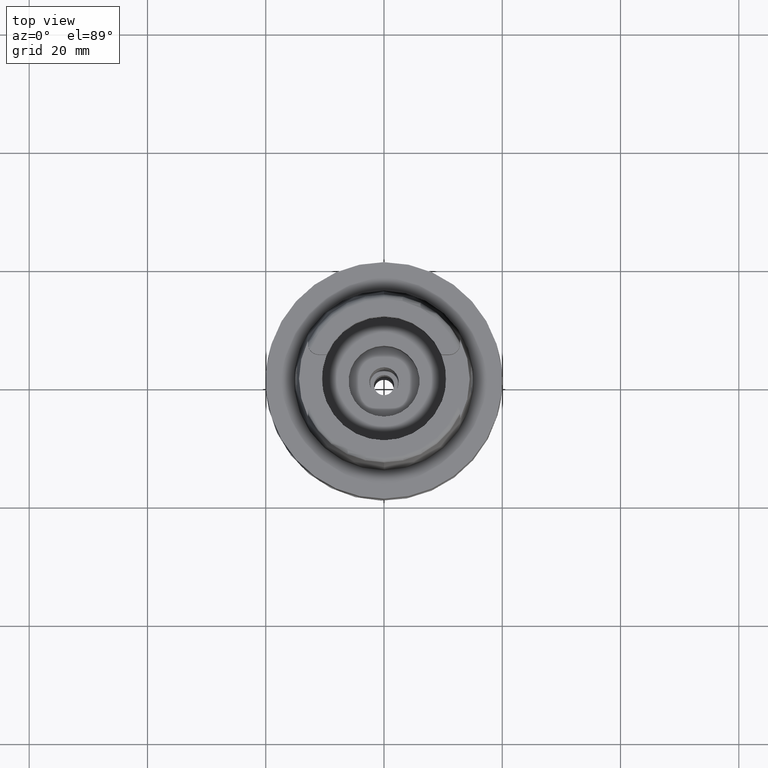
[diagram: clean part render]
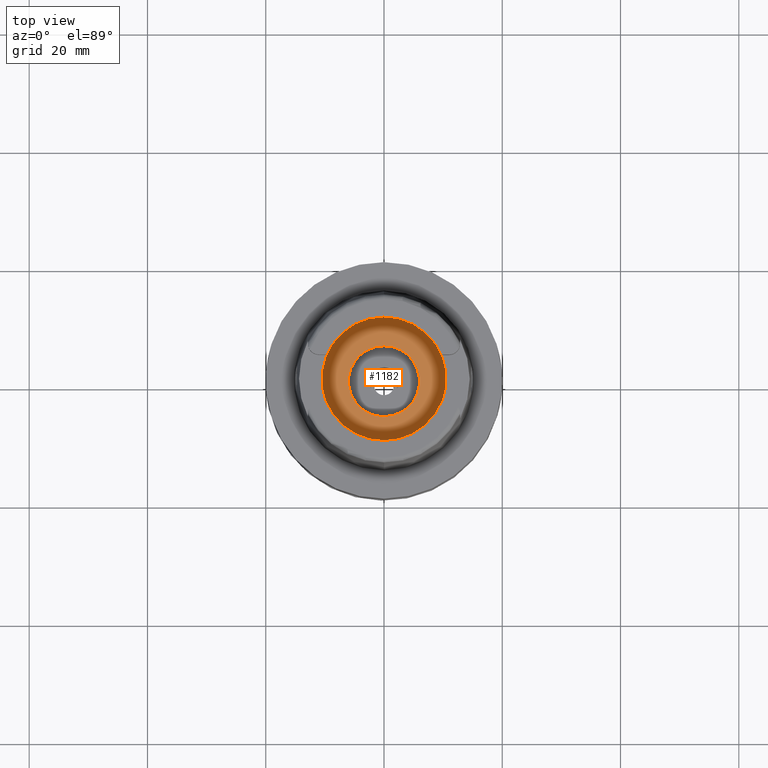
[diagram: same view with one face highlighted and labeled with its STEP entity id]
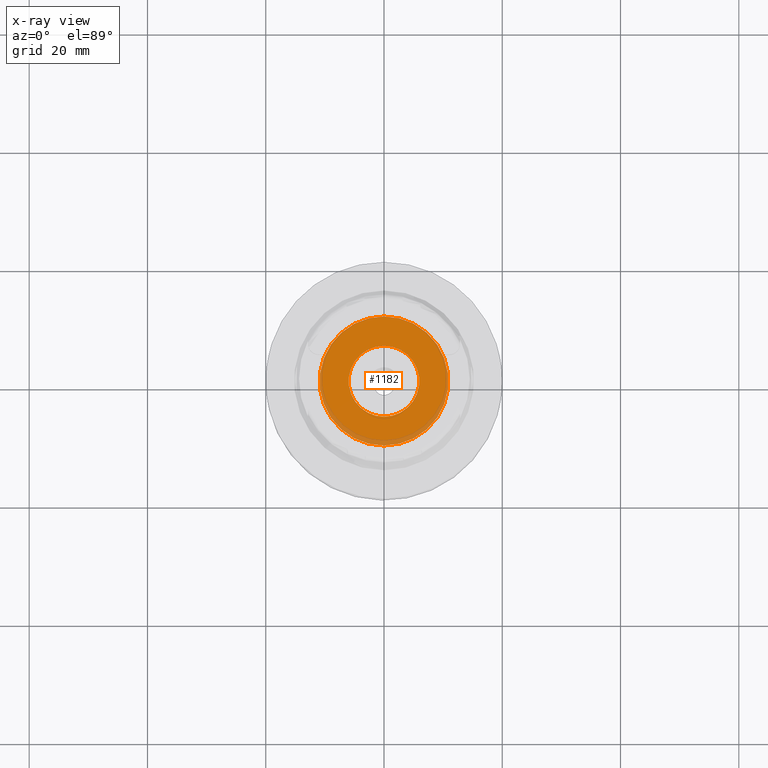
[diagram: x-ray of the same camera — body ghosted, the highlighted face saturated]
A machine part, top view. The second image highlights one B-rep face of the part: STEP entity #1182.
The next image is the same camera in x-ray: the body ghosted, the highlighted face saturated — about 11% of this face is hidden behind the body in this view.
In plain terms, the highlighted planar face has unit normal (0, 0, -1).
Its self-contained STEP definition (entity closure, byte-faithful):
#25 = FACE_BOUND ( 'NONE', #4653, .T. ) ;
#134 = DIRECTION ( 'NONE',  ( 0.0000000000000000000, 0.0000000000000000000, -1.000000000000000000 ) ) ;
#212 = CARTESIAN_POINT ( 'NONE',  ( 0.0000000000000000000, 1.534666136351999886E-14, -7.950000000000000178 ) ) ;
#364 = DIRECTION ( 'NONE',  ( 0.0000000000000000000, 1.000000000000000000, 0.0000000000000000000 ) ) ;
#475 = ORIENTED_EDGE ( 'NONE', *, *, #2150, .F. ) ;
#724 = AXIS2_PLACEMENT_3D ( 'NONE', #212, #134, #1769 ) ;
#751 = CARTESIAN_POINT ( 'NONE',  ( 0.0000000000000000000, 1.534666136351999886E-14, -7.950000000000000178 ) ) ;
#1182 = ADVANCED_FACE ( 'NONE', ( #1716, #25 ), #3345, .F. ) ;
#1213 = VERTEX_POINT ( 'NONE', #2976 ) ;
#1229 = AXIS2_PLACEMENT_3D ( 'NONE', #4980, #3298, #4474 ) ;
#1432 = EDGE_LOOP ( 'NONE', ( #1644, #3972 ) ) ;
#1541 = VERTEX_POINT ( 'NONE', #4151 ) ;
#1578 = CIRCLE ( 'NONE', #2255, 10.90000000000000036 ) ;
#1586 = CIRCLE ( 'NONE', #4562, 6.000000000000000000 ) ;
#1644 = ORIENTED_EDGE ( 'NONE', *, *, #3366, .F. ) ;
#1716 = FACE_OUTER_BOUND ( 'NONE', #1432, .T. ) ;
#1769 = DIRECTION ( 'NONE',  ( 0.0000000000000000000, -1.000000000000000000, 0.0000000000000000000 ) ) ;
#2150 = EDGE_CURVE ( 'NONE', #1541, #4336, #1586, .T. ) ;
#2255 = AXIS2_PLACEMENT_3D ( 'NONE', #751, #2381, #364 ) ;
#2381 = DIRECTION ( 'NONE',  ( 0.0000000000000000000, 0.0000000000000000000, -1.000000000000000000 ) ) ;
#2461 = CIRCLE ( 'NONE', #3233, 6.000000000000000000 ) ;
#2772 = DIRECTION ( 'NONE',  ( 0.0000000000000000000, 0.0000000000000000000, 1.000000000000000000 ) ) ;
#2829 = EDGE_CURVE ( 'NONE', #5216, #1213, #3105, .T. ) ;
#2836 = CARTESIAN_POINT ( 'NONE',  ( 0.0000000000000000000, 6.000000000000000000, -7.950000000000000178 ) ) ;
#2976 = CARTESIAN_POINT ( 'NONE',  ( 0.0000000000000000000, 10.90000000000000036, -7.950000000000000178 ) ) ;
#3105 = CIRCLE ( 'NONE', #724, 10.90000000000000036 ) ;
#3233 = AXIS2_PLACEMENT_3D ( 'NONE', #5235, #2772, #4010 ) ;
#3298 = DIRECTION ( 'NONE',  ( 0.0000000000000000000, 0.0000000000000000000, -1.000000000000000000 ) ) ;
#3345 = PLANE ( 'NONE',  #1229 ) ;
#3366 = EDGE_CURVE ( 'NONE', #1213, #5216, #1578, .T. ) ;
#3972 = ORIENTED_EDGE ( 'NONE', *, *, #2829, .F. ) ;
#4010 = DIRECTION ( 'NONE',  ( 0.0000000000000000000, 1.000000000000000000, 0.0000000000000000000 ) ) ;
#4151 = CARTESIAN_POINT ( 'NONE',  ( 0.0000000000000000000, -6.000000000000000000, -7.950000000000000178 ) ) ;
#4336 = VERTEX_POINT ( 'NONE', #2836 ) ;
#4474 = DIRECTION ( 'NONE',  ( 0.0000000000000000000, -1.000000000000000000, 0.0000000000000000000 ) ) ;
#4562 = AXIS2_PLACEMENT_3D ( 'NONE', #5075, #4613, #4672 ) ;
#4613 = DIRECTION ( 'NONE',  ( 0.0000000000000000000, 0.0000000000000000000, 1.000000000000000000 ) ) ;
#4653 = EDGE_LOOP ( 'NONE', ( #4935, #475 ) ) ;
#4672 = DIRECTION ( 'NONE',  ( 0.0000000000000000000, -1.000000000000000000, 0.0000000000000000000 ) ) ;
#4775 = CARTESIAN_POINT ( 'NONE',  ( 0.0000000000000000000, -10.90000000000000036, -7.950000000000000178 ) ) ;
#4889 = EDGE_CURVE ( 'NONE', #4336, #1541, #2461, .T. ) ;
#4935 = ORIENTED_EDGE ( 'NONE', *, *, #4889, .F. ) ;
#4980 = CARTESIAN_POINT ( 'NONE',  ( 0.0000000000000000000, 1.127287378614999966E-14, -7.950000000000000178 ) ) ;
#5075 = CARTESIAN_POINT ( 'NONE',  ( 0.0000000000000000000, 1.534666136351999886E-14, -7.950000000000000178 ) ) ;
#5216 = VERTEX_POINT ( 'NONE', #4775 ) ;
#5235 = CARTESIAN_POINT ( 'NONE',  ( 0.0000000000000000000, 1.534666136351999886E-14, -7.950000000000000178 ) ) ;